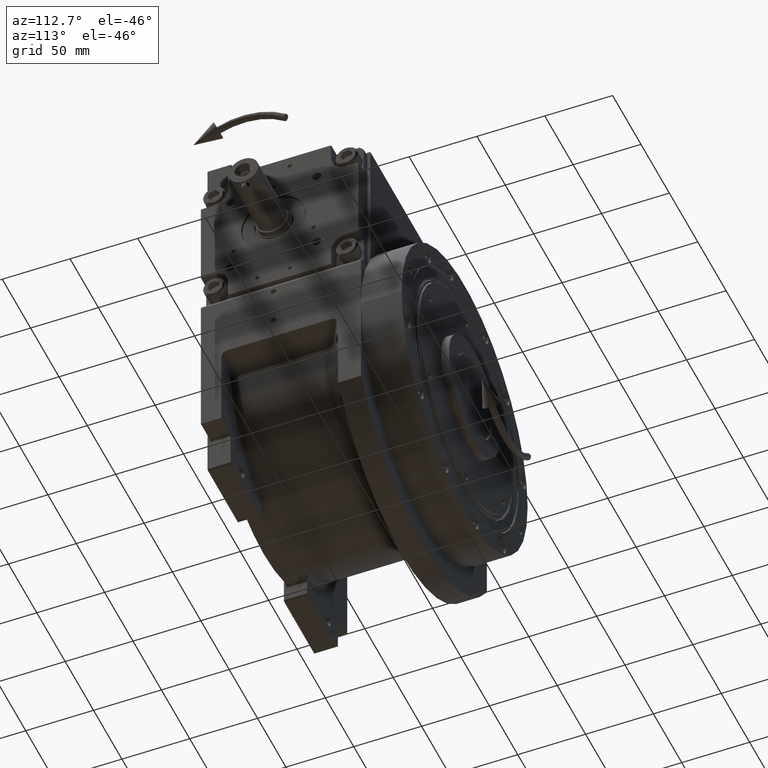
[diagram: clean part render]
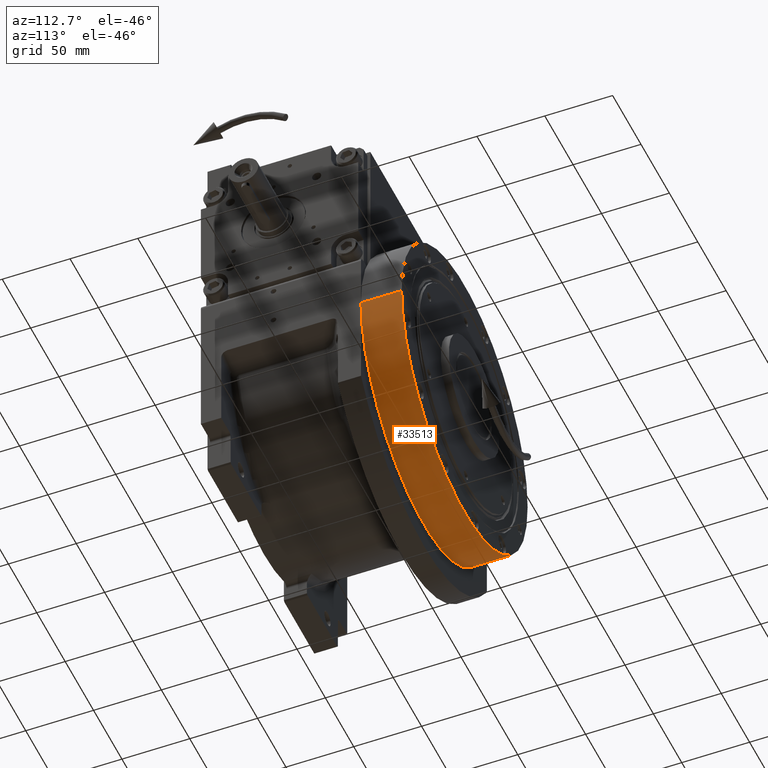
[diagram: same view with one face highlighted and labeled with its STEP entity id]
A machine part, auxiliary view. The second image highlights one B-rep face of the part: STEP entity #33513.
In plain terms, the highlighted cylindrical surface (partial cylindrical patch) has radius 111 mm, axis along (0, -1, 0).
Its self-contained STEP definition (entity closure, byte-faithful):
#2643 = DIRECTION ( 'NONE',  ( 0.000000000000000000, 0.000000000000000000, 1.000000000000000000 ) ) ;
#4504 = EDGE_CURVE ( 'NONE', #54123, #13830, #20916, .T. ) ;
#7822 = FACE_OUTER_BOUND ( 'NONE', #27574, .T. ) ;
#13336 = CYLINDRICAL_SURFACE ( 'NONE', #37447, 111.0000000000000000 ) ;
#13830 = VERTEX_POINT ( 'NONE', #42991 ) ;
#18113 = CARTESIAN_POINT ( 'NONE',  ( -111.0000000000000000, 4.531193156845210737E-15, 0.000000000000000000 ) ) ;
#19485 = VECTOR ( 'NONE', #57859, 1000.000000000000000 ) ;
#20916 = CIRCLE ( 'NONE', #22043, 111.0000000000000000 ) ;
#21090 = AXIS2_PLACEMENT_3D ( 'NONE', #43918, #22564, #59418 ) ;
#22043 = AXIS2_PLACEMENT_3D ( 'NONE', #37076, #43588, #32551 ) ;
#22223 = CARTESIAN_POINT ( 'NONE',  ( 111.0000000000000000, 0.000000000000000000, 30.00000000000000000 ) ) ;
#22564 = DIRECTION ( 'NONE',  ( 0.000000000000000000, 0.000000000000000000, 1.000000000000000000 ) ) ;
#24338 = ORIENTED_EDGE ( 'NONE', *, *, #49592, .T. ) ;
#25893 = ORIENTED_EDGE ( 'NONE', *, *, #27928, .F. ) ;
#27574 = EDGE_LOOP ( 'NONE', ( #24338, #63118, #25893, #54871 ) ) ;
#27928 = EDGE_CURVE ( 'NONE', #57474, #54123, #43369, .T. ) ;
#30159 = CARTESIAN_POINT ( 'NONE',  ( 111.0000000000000000, 0.000000000000000000, 0.000000000000000000 ) ) ;
#32551 = DIRECTION ( 'NONE',  ( 1.000000000000000000, 0.000000000000000000, 0.000000000000000000 ) ) ;
#33513 = ADVANCED_FACE ( 'NONE', ( #7822 ), #13336, .T. ) ;
#34356 = DIRECTION ( 'NONE',  ( 0.000000000000000000, 0.000000000000000000, -1.000000000000000000 ) ) ;
#34706 = CARTESIAN_POINT ( 'NONE',  ( 0.000000000000000000, 0.000000000000000000, 0.000000000000000000 ) ) ;
#37076 = CARTESIAN_POINT ( 'NONE',  ( 0.000000000000000000, 0.000000000000000000, 30.00000000000000000 ) ) ;
#37447 = AXIS2_PLACEMENT_3D ( 'NONE', #34706, #34356, #65701 ) ;
#40536 = VECTOR ( 'NONE', #2643, 1000.000000000000000 ) ;
#42991 = CARTESIAN_POINT ( 'NONE',  ( -111.0000000000000000, 4.531193156845210737E-15, 30.00000000000000000 ) ) ;
#43369 = LINE ( 'NONE', #48527, #19485 ) ;
#43588 = DIRECTION ( 'NONE',  ( 0.000000000000000000, 0.000000000000000000, 1.000000000000000000 ) ) ;
#43918 = CARTESIAN_POINT ( 'NONE',  ( 0.000000000000000000, 0.000000000000000000, 0.000000000000000000 ) ) ;
#48527 = CARTESIAN_POINT ( 'NONE',  ( 111.0000000000000000, 0.000000000000000000, 0.000000000000000000 ) ) ;
#49592 = EDGE_CURVE ( 'NONE', #61900, #13830, #50162, .T. ) ;
#50162 = LINE ( 'NONE', #55667, #40536 ) ;
#50632 = CIRCLE ( 'NONE', #21090, 111.0000000000000000 ) ;
#52707 = EDGE_CURVE ( 'NONE', #57474, #61900, #50632, .T. ) ;
#54123 = VERTEX_POINT ( 'NONE', #22223 ) ;
#54871 = ORIENTED_EDGE ( 'NONE', *, *, #52707, .T. ) ;
#55667 = CARTESIAN_POINT ( 'NONE',  ( -111.0000000000000000, 1.359357947053561722E-14, 0.000000000000000000 ) ) ;
#57474 = VERTEX_POINT ( 'NONE', #30159 ) ;
#57859 = DIRECTION ( 'NONE',  ( 0.000000000000000000, 0.000000000000000000, 1.000000000000000000 ) ) ;
#59418 = DIRECTION ( 'NONE',  ( 1.000000000000000000, 0.000000000000000000, 0.000000000000000000 ) ) ;
#61900 = VERTEX_POINT ( 'NONE', #18113 ) ;
#63118 = ORIENTED_EDGE ( 'NONE', *, *, #4504, .F. ) ;
#65701 = DIRECTION ( 'NONE',  ( 1.000000000000000000, 0.000000000000000000, 0.000000000000000000 ) ) ;